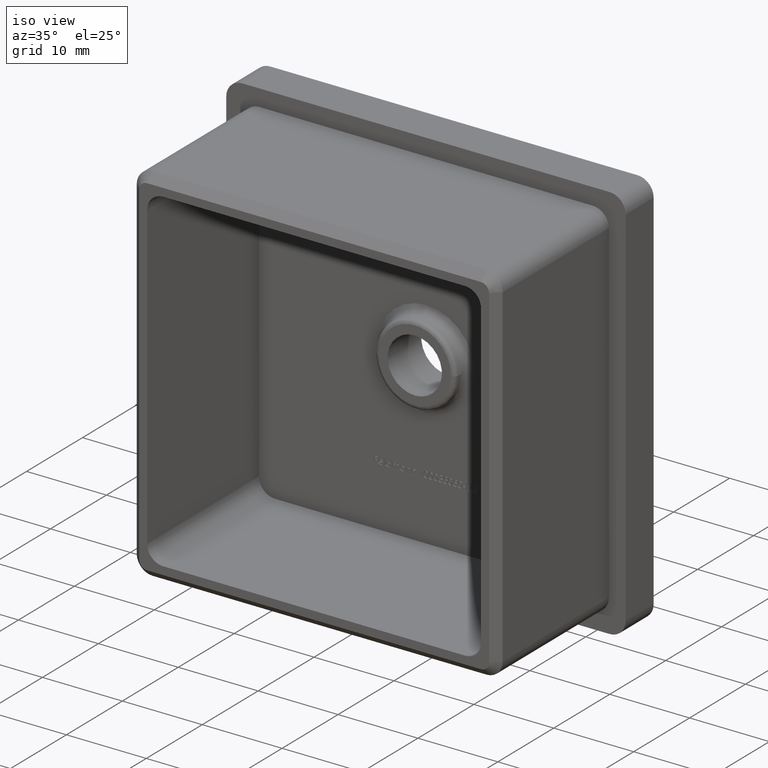
[diagram: clean part render]
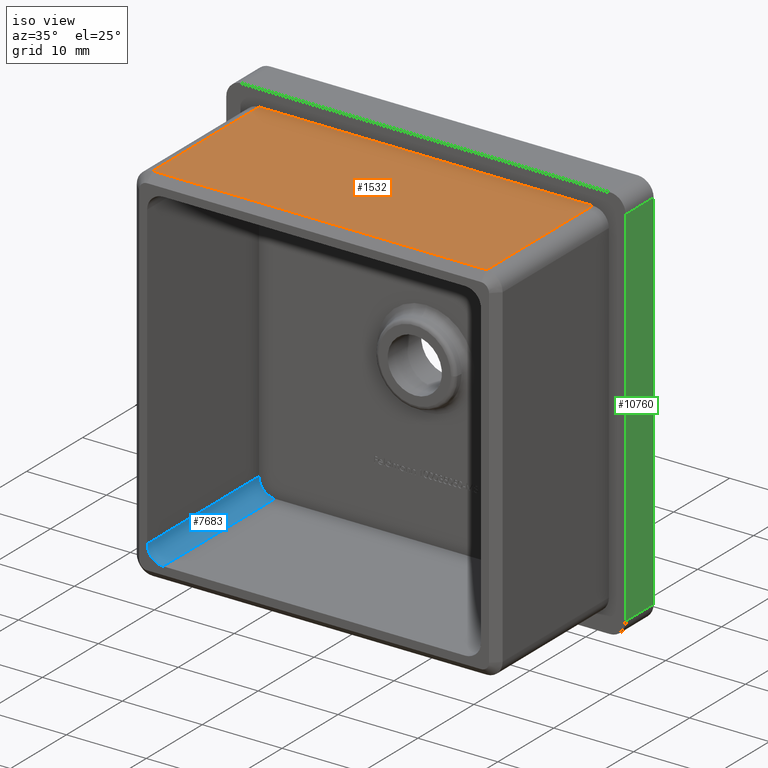
[diagram: same view with three faces highlighted in distinct colors, each labeled with its STEP entity id]
A machine part, iso view with three faces highlighted in distinct colors.
Their STEP definitions:

[orange] entity #1532 — the highlighted planar face has unit normal (0, 0, -1).
#300 = LINE ( 'NONE', #16460, #1159 ) ;
#314 = VERTEX_POINT ( 'NONE', #14391 ) ;
#599 = DIRECTION ( 'NONE',  ( 0.0000000000000000000, 0.0000000000000000000, -1.000000000000000000 ) ) ;
#1142 = ORIENTED_EDGE ( 'NONE', *, *, #2951, .T. ) ;
#1159 = VECTOR ( 'NONE', #1321, 1000.000000000000000 ) ;
#1179 = LINE ( 'NONE', #9922, #13282 ) ;
#1321 = DIRECTION ( 'NONE',  ( -0.0000000000000000000, -1.000000000000000000, -0.0000000000000000000 ) ) ;
#1532 = ADVANCED_FACE ( 'NONE', ( #7784 ), #10263, .F. ) ;
#1676 = EDGE_CURVE ( 'NONE', #9654, #314, #17035, .T. ) ;
#2885 = VECTOR ( 'NONE', #5663, 1000.000000000000000 ) ;
#2951 = EDGE_CURVE ( 'NONE', #314, #11517, #1179, .T. ) ;
#3928 = CARTESIAN_POINT ( 'NONE',  ( 20.89999999999999100, -18.99999999999999300, 22.89999999999998800 ) ) ;
#4159 = EDGE_CURVE ( 'NONE', #11517, #7064, #300, .T. ) ;
#4754 = EDGE_CURVE ( 'NONE', #7064, #9654, #4807, .T. ) ;
#4807 = LINE ( 'NONE', #3928, #2885 ) ;
#5663 = DIRECTION ( 'NONE',  ( 1.000000000000000000, 0.0000000000000000000, 0.0000000000000000000 ) ) ;
#5820 = ORIENTED_EDGE ( 'NONE', *, *, #4754, .T. ) ;
#5847 = ORIENTED_EDGE ( 'NONE', *, *, #1676, .T. ) ;
#6381 = CARTESIAN_POINT ( 'NONE',  ( -20.89999999999998800, -18.99999999999999300, 22.89999999999998800 ) ) ;
#6543 = DIRECTION ( 'NONE',  ( 0.0000000000000000000, 1.000000000000000000, 0.0000000000000000000 ) ) ;
#7064 = VERTEX_POINT ( 'NONE', #6381 ) ;
#7555 = VECTOR ( 'NONE', #6543, 1000.000000000000000 ) ;
#7620 = AXIS2_PLACEMENT_3D ( 'NONE', #17173, #599, #15858 ) ;
#7784 = FACE_OUTER_BOUND ( 'NONE', #13139, .T. ) ;
#7855 = CARTESIAN_POINT ( 'NONE',  ( 20.89999999999999100, -18.99999999999999300, 22.89999999999998800 ) ) ;
#9654 = VERTEX_POINT ( 'NONE', #7855 ) ;
#9917 = ORIENTED_EDGE ( 'NONE', *, *, #4159, .T. ) ;
#9922 = CARTESIAN_POINT ( 'NONE',  ( -22.89999999999998800, 0.0000000000000000000, 22.89999999999998800 ) ) ;
#10263 = PLANE ( 'NONE',  #7620 ) ;
#11517 = VERTEX_POINT ( 'NONE', #16495 ) ;
#12686 = DIRECTION ( 'NONE',  ( -1.000000000000000000, -0.0000000000000000000, -0.0000000000000000000 ) ) ;
#13139 = EDGE_LOOP ( 'NONE', ( #9917, #5820, #5847, #1142 ) ) ;
#13282 = VECTOR ( 'NONE', #12686, 1000.000000000000000 ) ;
#14391 = CARTESIAN_POINT ( 'NONE',  ( 20.89999999999999100, 0.0000000000000000000, 22.89999999999998800 ) ) ;
#15858 = DIRECTION ( 'NONE',  ( -1.000000000000000000, 0.0000000000000000000, -0.0000000000000000000 ) ) ;
#16094 = CARTESIAN_POINT ( 'NONE',  ( 20.89999999999999100, -20.00000000000000000, 22.89999999999998800 ) ) ;
#16460 = CARTESIAN_POINT ( 'NONE',  ( -20.89999999999998800, -20.00000000000000000, 22.89999999999998800 ) ) ;
#16495 = CARTESIAN_POINT ( 'NONE',  ( -20.89999999999998800, 0.0000000000000000000, 22.89999999999998800 ) ) ;
#17035 = LINE ( 'NONE', #16094, #7555 ) ;
#17173 = CARTESIAN_POINT ( 'NONE',  ( -22.89999999999998800, -20.00000000000000000, 22.89999999999998800 ) ) ;

[blue] entity #7683 — the highlighted cylindrical surface (edge-blend (fillet) strip) has radius 2 mm, axis along (0, -1, 0).
#2334 = DIRECTION ( 'NONE',  ( 0.0000000000000000000, 0.0000000000000000000, -1.000000000000000000 ) ) ;
#2577 = EDGE_LOOP ( 'NONE', ( #7890, #11510, #8611, #5031 ) ) ;
#2888 = VECTOR ( 'NONE', #9835, 1000.000000000000000 ) ;
#2950 = CARTESIAN_POINT ( 'NONE',  ( -18.89999999999998800, 0.0000000000000000000, -18.89999999999998800 ) ) ;
#3224 = VERTEX_POINT ( 'NONE', #8024 ) ;
#3256 = VERTEX_POINT ( 'NONE', #13382 ) ;
#3767 = CARTESIAN_POINT ( 'NONE',  ( -20.89999999999998800, 0.0000000000000000000, -18.89999999999998800 ) ) ;
#4688 = DIRECTION ( 'NONE',  ( 0.0000000000000000000, 0.0000000000000000000, -1.000000000000000000 ) ) ;
#5031 = ORIENTED_EDGE ( 'NONE', *, *, #15502, .F. ) ;
#6764 = CYLINDRICAL_SURFACE ( 'NONE', #7891, 2.000000000000001800 ) ;
#7091 = CARTESIAN_POINT ( 'NONE',  ( -18.89999999999998800, -20.00000000000000000, -20.89999999999998800 ) ) ;
#7538 = CARTESIAN_POINT ( 'NONE',  ( -18.89999999999998800, -20.00000000000000000, -18.89999999999998800 ) ) ;
#7683 = ADVANCED_FACE ( 'NONE', ( #10037 ), #6764, .F. ) ;
#7890 = ORIENTED_EDGE ( 'NONE', *, *, #8377, .F. ) ;
#7891 = AXIS2_PLACEMENT_3D ( 'NONE', #7538, #8882, #4688 ) ;
#7995 = EDGE_CURVE ( 'NONE', #3224, #9774, #13902, .T. ) ;
#8024 = CARTESIAN_POINT ( 'NONE',  ( -18.89999999999998800, 0.0000000000000000000, -20.89999999999998800 ) ) ;
#8276 = CIRCLE ( 'NONE', #17118, 2.000000000000001800 ) ;
#8377 = EDGE_CURVE ( 'NONE', #9774, #13528, #8276, .T. ) ;
#8568 = DIRECTION ( 'NONE',  ( 0.0000000000000000000, 0.0000000000000000000, 1.000000000000000000 ) ) ;
#8611 = ORIENTED_EDGE ( 'NONE', *, *, #9872, .F. ) ;
#8882 = DIRECTION ( 'NONE',  ( 0.0000000000000000000, -1.000000000000000000, 0.0000000000000000000 ) ) ;
#9337 = VECTOR ( 'NONE', #14648, 1000.000000000000000 ) ;
#9774 = VERTEX_POINT ( 'NONE', #10924 ) ;
#9835 = DIRECTION ( 'NONE',  ( -0.0000000000000000000, -1.000000000000000000, 0.0000000000000000000 ) ) ;
#9872 = EDGE_CURVE ( 'NONE', #3256, #3224, #16294, .T. ) ;
#10037 = FACE_OUTER_BOUND ( 'NONE', #2577, .T. ) ;
#10190 = LINE ( 'NONE', #3767, #9337 ) ;
#10592 = CARTESIAN_POINT ( 'NONE',  ( -18.89999999999998800, -20.00000000000000000, -18.89999999999998800 ) ) ;
#10924 = CARTESIAN_POINT ( 'NONE',  ( -18.89999999999998800, -20.00000000000000000, -20.89999999999998800 ) ) ;
#11510 = ORIENTED_EDGE ( 'NONE', *, *, #7995, .F. ) ;
#12040 = DIRECTION ( 'NONE',  ( -0.0000000000000000000, 1.000000000000000000, -0.0000000000000000000 ) ) ;
#12292 = AXIS2_PLACEMENT_3D ( 'NONE', #2950, #12552, #8568 ) ;
#12552 = DIRECTION ( 'NONE',  ( -0.0000000000000000000, -1.000000000000000000, -0.0000000000000000000 ) ) ;
#13382 = CARTESIAN_POINT ( 'NONE',  ( -20.89999999999998800, 0.0000000000000000000, -18.89999999999997400 ) ) ;
#13528 = VERTEX_POINT ( 'NONE', #16559 ) ;
#13902 = LINE ( 'NONE', #7091, #2888 ) ;
#14648 = DIRECTION ( 'NONE',  ( 0.0000000000000000000, 1.000000000000000000, -0.0000000000000000000 ) ) ;
#15502 = EDGE_CURVE ( 'NONE', #13528, #3256, #10190, .T. ) ;
#16294 = CIRCLE ( 'NONE', #12292, 2.000000000000001800 ) ;
#16559 = CARTESIAN_POINT ( 'NONE',  ( -20.89999999999998800, -20.00000000000000000, -18.89999999999997400 ) ) ;
#17118 = AXIS2_PLACEMENT_3D ( 'NONE', #10592, #12040, #2334 ) ;

[green] entity #10760 — the highlighted planar face has unit normal (-1, 0, 0).
#891 = VERTEX_POINT ( 'NONE', #16561 ) ;
#2833 = VERTEX_POINT ( 'NONE', #6756 ) ;
#3273 = DIRECTION ( 'NONE',  ( -1.000000000000000000, 0.0000000000000000000, 0.0000000000000000000 ) ) ;
#3545 = DIRECTION ( 'NONE',  ( -0.0000000000000000000, -0.0000000000000000000, -1.000000000000000000 ) ) ;
#3756 = VECTOR ( 'NONE', #3545, 1000.000000000000000 ) ;
#3890 = ORIENTED_EDGE ( 'NONE', *, *, #14383, .T. ) ;
#3895 = DIRECTION ( 'NONE',  ( 0.0000000000000000000, -1.000000000000000000, 0.0000000000000000000 ) ) ;
#3937 = EDGE_CURVE ( 'NONE', #6971, #10421, #8964, .T. ) ;
#4659 = DIRECTION ( 'NONE',  ( 0.0000000000000000000, 0.0000000000000000000, 1.000000000000000000 ) ) ;
#4845 = DIRECTION ( 'NONE',  ( -0.0000000000000000000, 1.000000000000000000, -0.0000000000000000000 ) ) ;
#4850 = VECTOR ( 'NONE', #4845, 1000.000000000000000 ) ;
#6331 = CARTESIAN_POINT ( 'NONE',  ( 24.99999999999999600, 0.0000000000000000000, -25.00000000000000000 ) ) ;
#6753 = VECTOR ( 'NONE', #9025, 1000.000000000000000 ) ;
#6756 = CARTESIAN_POINT ( 'NONE',  ( 24.99999999999999600, 5.000000000000000000, 22.99999999999998600 ) ) ;
#6971 = VERTEX_POINT ( 'NONE', #15683 ) ;
#7505 = PLANE ( 'NONE',  #15748 ) ;
#7767 = CARTESIAN_POINT ( 'NONE',  ( 24.99999999999999600, 5.000000000000000000, -25.00000000000000000 ) ) ;
#7880 = LINE ( 'NONE', #7767, #3756 ) ;
#8964 = LINE ( 'NONE', #6331, #6753 ) ;
#9025 = DIRECTION ( 'NONE',  ( -0.0000000000000000000, -0.0000000000000000000, -1.000000000000000000 ) ) ;
#9246 = EDGE_CURVE ( 'NONE', #10421, #891, #15875, .T. ) ;
#9913 = EDGE_LOOP ( 'NONE', ( #14348, #10695, #15951, #3890 ) ) ;
#10421 = VERTEX_POINT ( 'NONE', #12431 ) ;
#10695 = ORIENTED_EDGE ( 'NONE', *, *, #9246, .T. ) ;
#10760 = ADVANCED_FACE ( 'NONE', ( #14374 ), #7505, .F. ) ;
#12185 = CARTESIAN_POINT ( 'NONE',  ( 24.99999999999999600, 5.000000000000000000, 22.99999999999998600 ) ) ;
#12205 = EDGE_CURVE ( 'NONE', #2833, #891, #7880, .T. ) ;
#12398 = VECTOR ( 'NONE', #3895, 1000.000000000000000 ) ;
#12431 = CARTESIAN_POINT ( 'NONE',  ( 24.99999999999999600, 0.0000000000000000000, -23.00000000000000000 ) ) ;
#14348 = ORIENTED_EDGE ( 'NONE', *, *, #3937, .T. ) ;
#14374 = FACE_OUTER_BOUND ( 'NONE', #9913, .T. ) ;
#14383 = EDGE_CURVE ( 'NONE', #2833, #6971, #16284, .T. ) ;
#15683 = CARTESIAN_POINT ( 'NONE',  ( 24.99999999999999600, 0.0000000000000000000, 22.99999999999998600 ) ) ;
#15713 = CARTESIAN_POINT ( 'NONE',  ( 24.99999999999999600, 5.000000000000000000, -23.00000000000000000 ) ) ;
#15748 = AXIS2_PLACEMENT_3D ( 'NONE', #16964, #3273, #4659 ) ;
#15875 = LINE ( 'NONE', #15713, #4850 ) ;
#15951 = ORIENTED_EDGE ( 'NONE', *, *, #12205, .F. ) ;
#16284 = LINE ( 'NONE', #12185, #12398 ) ;
#16561 = CARTESIAN_POINT ( 'NONE',  ( 24.99999999999999600, 5.000000000000000000, -23.00000000000000000 ) ) ;
#16964 = CARTESIAN_POINT ( 'NONE',  ( 24.99999999999999600, 5.000000000000000000, -25.00000000000000000 ) ) ;